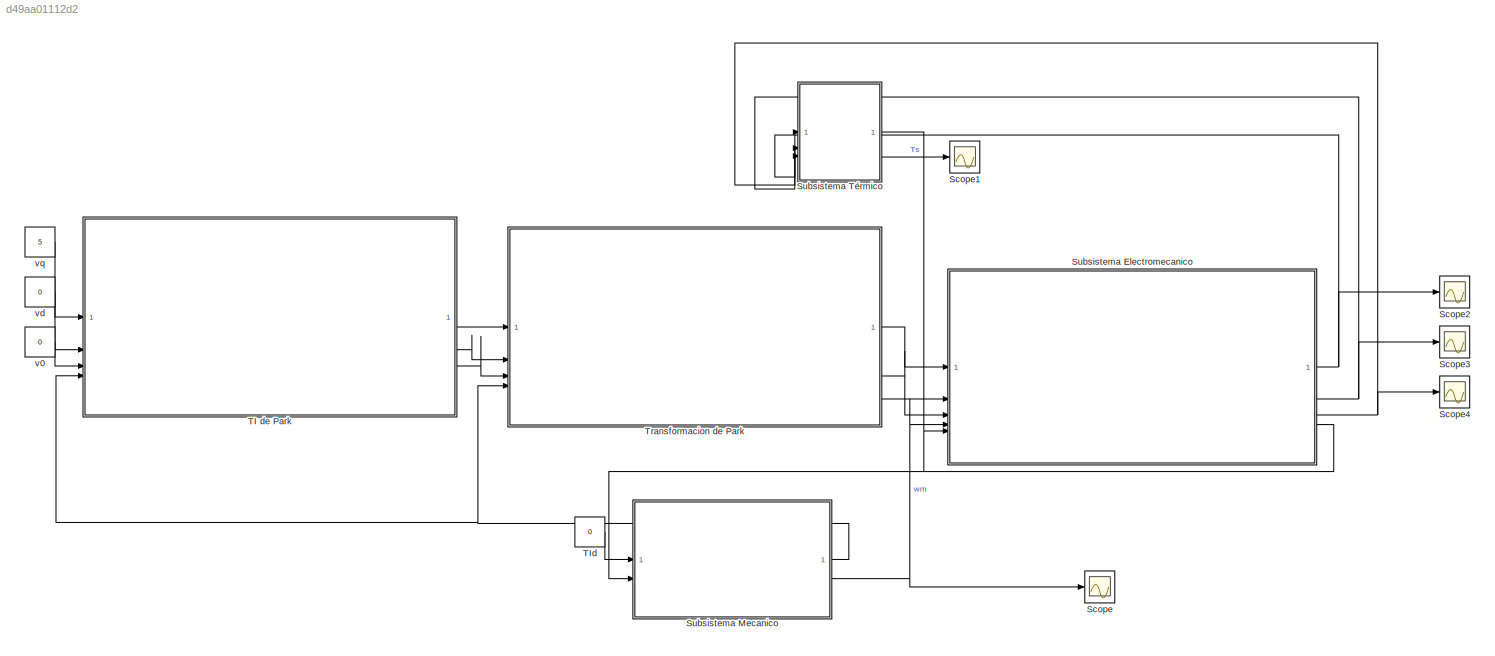
MODEL slx_d49aa01112d2
KIND model
CONFIG AbsTol = auto
CONFIG EnableMultiTasking = off
CONFIG FixedStep = auto
CONFIG MaxStep = auto
CONFIG MinStep = auto
CONFIG PostLoadFcn = parametros_sistema_completo\nrun("parametros_sistema_completo.mlx")
CONFIG RelTol = 1e-3
CONFIG SampleTimeConstraint = Unconstrained
CONFIG SolverName = VariableStepAuto
CONFIG StartTime = 0.0
CONFIG StopTime = 10.0
BLOCK [Scope] Scope
  Floating = off
  NumInputPorts = 1
  ScopeSpecificationString = Simulink.scopes.TimeScopeBlockCfg('CurrentConfiguration', extmgr.ConfigurationSet(extmgr.Configuration('Core','General UI',true,'FigureColor',[1 1 1]),extmgr.Configuration('Core','Source UI',true),extmgr.Configuration('Sources','WiredSimulink',true),extmgr.Configuration('Visuals','Time Domain',true,'SerializedDisplays',{struct('MinYLimReal','-12.7259','MaxYLimReal','114.5331','YLabelReal','','MinY...<+1602ch>
BLOCK [Scope] Scope1
  Floating = off
  NumInputPorts = 1
  ScopeSpecificationString = Simulink.scopes.TimeScopeBlockCfg('CurrentConfiguration', extmgr.ConfigurationSet(extmgr.Configuration('Core','General UI',true,'FigureColor',[1 1 1]),extmgr.Configuration('Core','Source UI',true),extmgr.Configuration('Sources','WiredSimulink',true,'DataLoggingVariableName','ScopeData1'),extmgr.Configuration('Visuals','Time Domain',true,'SerializedDisplays',{struct('MinYLimReal','19.96696','MaxYLi...<+1556ch>
BLOCK [Scope] Scope2
  Floating = off
  NumInputPorts = 1
  ScopeSpecificationString = Simulink.scopes.TimeScopeBlockCfg('CurrentConfiguration', extmgr.ConfigurationSet(extmgr.Configuration('Core','General UI',true,'FigureColor',[1 1 1]),extmgr.Configuration('Core','Source UI',true),extmgr.Configuration('Sources','WiredSimulink',true,'DataLoggingVariableName','ScopeData2'),extmgr.Configuration('Visuals','Time Domain',true,'SerializedDisplays',{struct('MinYLimReal','-0.36688','MaxYLi...<+1536ch>
BLOCK [Scope] Scope3
  Floating = off
  NumInputPorts = 1
  ScopeSpecificationString = Simulink.scopes.TimeScopeBlockCfg('CurrentConfiguration', extmgr.ConfigurationSet(extmgr.Configuration('Core','General UI',true),extmgr.Configuration('Core','Source UI',true),extmgr.Configuration('Sources','WiredSimulink',true,'DataLoggingVariableName','ScopeData3'),extmgr.Configuration('Visuals','Time Domain',true,'SerializedDisplays',{struct('MinYLimReal','-0.21509','MaxYLimReal','1.75287','YLab...<+1421ch>
BLOCK [Scope] Scope4
  Floating = off
  NumInputPorts = 1
  ScopeSpecificationString = Simulink.scopes.TimeScopeBlockCfg('CurrentConfiguration', extmgr.ConfigurationSet(extmgr.Configuration('Core','General UI',true),extmgr.Configuration('Core','Source UI',true),extmgr.Configuration('Sources','WiredSimulink',true,'DataLoggingVariableName','ScopeData4'),extmgr.Configuration('Visuals','Time Domain',true,'SerializedDisplays',{struct('MinYLimReal','-0.000000000048','MaxYLimReal','0.00000...<+1473ch>
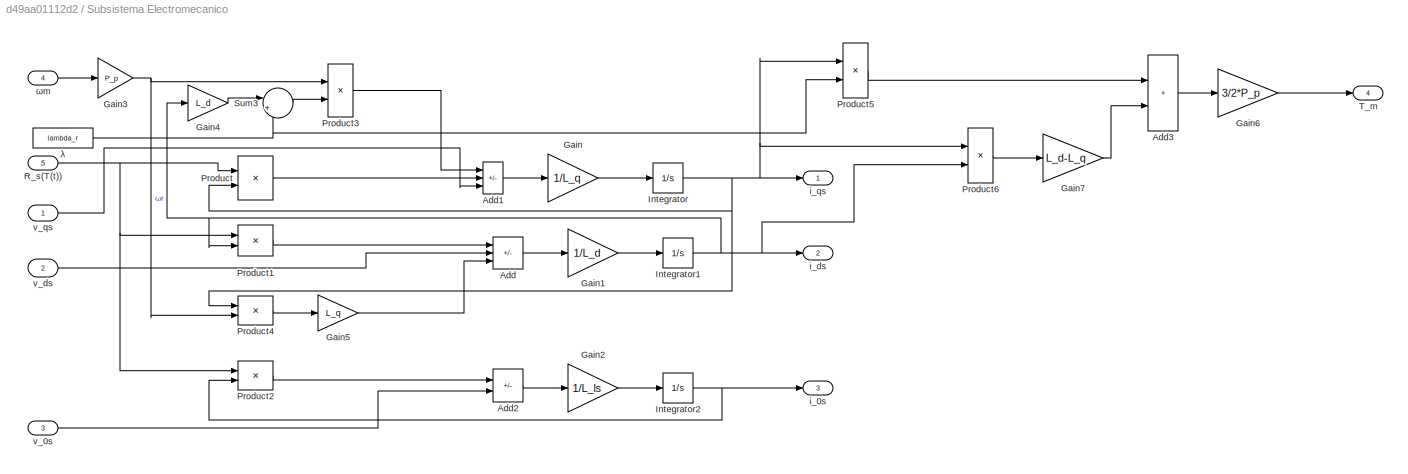
BLOCK [SubSystem] Subsistema Electromecanico
BLOCK [Sum] Subsistema Electromecanico/Add
  IconShape = rectangular
  Inputs = -++
BLOCK [Sum] Subsistema Electromecanico/Add1
  IconShape = rectangular
  Inputs = --+
BLOCK [Sum] Subsistema Electromecanico/Add2
  IconShape = rectangular
  Inputs = -+
BLOCK [Sum] Subsistema Electromecanico/Add3
  IconShape = rectangular
BLOCK [Gain] Subsistema Electromecanico/Gain
  Gain = 1/L_q
BLOCK [Gain] Subsistema Electromecanico/Gain1
  Gain = 1/L_d
BLOCK [Gain] Subsistema Electromecanico/Gain2
  Gain = 1/L_ls
BLOCK [Gain] Subsistema Electromecanico/Gain3
  Gain = P_p
BLOCK [Gain] Subsistema Electromecanico/Gain4
  Gain = L_d
BLOCK [Gain] Subsistema Electromecanico/Gain5
  Gain = L_q
BLOCK [Gain] Subsistema Electromecanico/Gain6
  Gain = 3/2*P_p
BLOCK [Gain] Subsistema Electromecanico/Gain7
  Gain = L_d-L_q
BLOCK [Integrator] Subsistema Electromecanico/Integrator
BLOCK [Integrator] Subsistema Electromecanico/Integrator1
BLOCK [Integrator] Subsistema Electromecanico/Integrator2
BLOCK [Product] Subsistema Electromecanico/Product
BLOCK [Product] Subsistema Electromecanico/Product1
BLOCK [Product] Subsistema Electromecanico/Product2
BLOCK [Product] Subsistema Electromecanico/Product3
BLOCK [Product] Subsistema Electromecanico/Product4
BLOCK [Product] Subsistema Electromecanico/Product5
BLOCK [Product] Subsistema Electromecanico/Product6
BLOCK [Inport] Subsistema Electromecanico/R_s(T(t))
  Port = 5
BLOCK [Sum] Subsistema Electromecanico/Sum3
  Inputs = |++
BLOCK [Outport] Subsistema Electromecanico/T_m
  Port = 4
BLOCK [Outport] Subsistema Electromecanico/i_0s
  Port = 3
BLOCK [Outport] Subsistema Electromecanico/i_ds
  Port = 2
BLOCK [Outport] Subsistema Electromecanico/i_qs
BLOCK [Inport] Subsistema Electromecanico/v_0s
  Port = 3
BLOCK [Inport] Subsistema Electromecanico/v_ds
  Port = 2
BLOCK [Inport] Subsistema Electromecanico/v_qs
BLOCK [Constant] Subsistema Electromecanico/λ
  NameLocation = left
  Value = lambda_r
BLOCK [Inport] Subsistema Electromecanico/ωm
  Port = 4
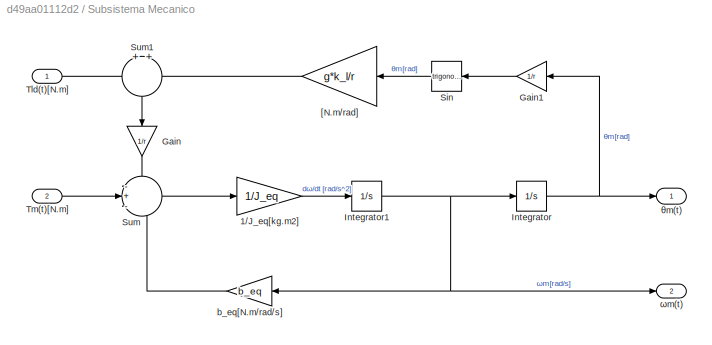
BLOCK [SubSystem] Subsistema Mecanico
BLOCK [Gain] Subsistema Mecanico/1//J_eq[kg.m2]
  Gain = 1/J_eq
BLOCK [Gain] Subsistema Mecanico/Gain
  Gain = 1/r
  NameLocation = left
BLOCK [Gain] Subsistema Mecanico/Gain1
  Gain = 1/r
  NameLocation = top
BLOCK [Integrator] Subsistema Mecanico/Integrator
BLOCK [Integrator] Subsistema Mecanico/Integrator1
BLOCK [Trigonometry] Subsistema Mecanico/Sin
  NameLocation = top
BLOCK [Sum] Subsistema Mecanico/Sum
  Inputs = -+-
BLOCK [Sum] Subsistema Mecanico/Sum1
  NameLocation = left
BLOCK [Inport] Subsistema Mecanico/Tld(t)[N.m]
BLOCK [Inport] Subsistema Mecanico/Tm(t)[N.m]
  Port = 2
BLOCK [Gain] Subsistema Mecanico/[N.m//rad]
  Gain = g*k_l/r
  NameLocation = top
BLOCK [Gain] Subsistema Mecanico/b_eq[N.m//rad//s]
  Gain = b_eq
  NameLocation = top
BLOCK [Outport] Subsistema Mecanico/θm(t)
  NameLocation = top
BLOCK [Outport] Subsistema Mecanico/ωm(t)
  Port = 2
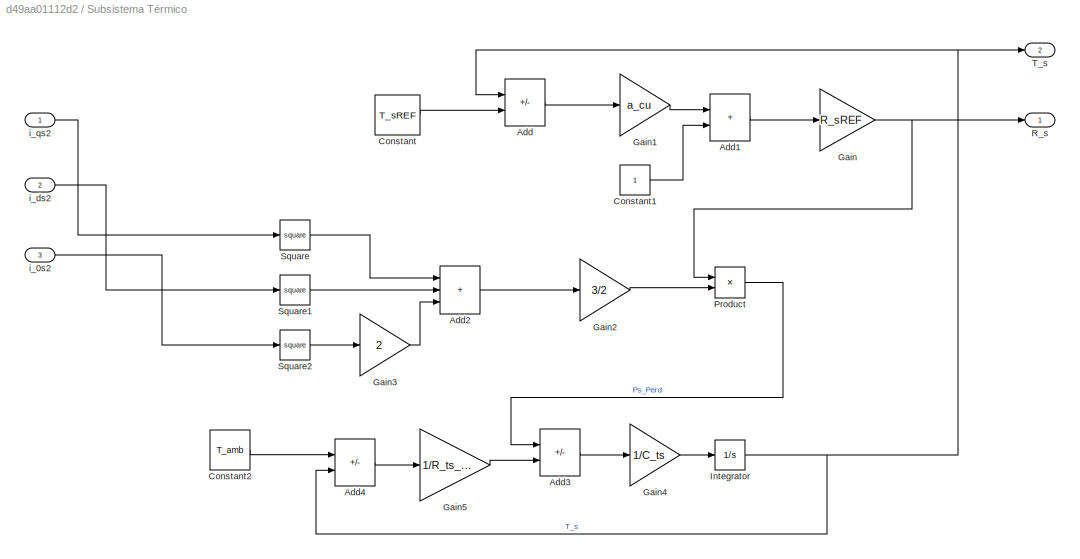
BLOCK [SubSystem] Subsistema Térmico
BLOCK [Sum] Subsistema Térmico/Add
  IconShape = rectangular
  Inputs = +-
BLOCK [Sum] Subsistema Térmico/Add1
  IconShape = rectangular
BLOCK [Sum] Subsistema Térmico/Add2
  IconShape = rectangular
  Inputs = +++
BLOCK [Sum] Subsistema Térmico/Add3
  IconShape = rectangular
  Inputs = +-
BLOCK [Sum] Subsistema Térmico/Add4
  IconShape = rectangular
  Inputs = -+
BLOCK [Constant] Subsistema Térmico/Constant
  Value = T_sREF
BLOCK [Constant] Subsistema Térmico/Constant1
BLOCK [Constant] Subsistema Térmico/Constant2
  Value = T_amb
BLOCK [Gain] Subsistema Térmico/Gain
  Gain = R_sREF
BLOCK [Gain] Subsistema Térmico/Gain1
  Gain = a_cu
BLOCK [Gain] Subsistema Térmico/Gain2
  Gain = 3/2
BLOCK [Gain] Subsistema Térmico/Gain3
  Gain = 2
BLOCK [Gain] Subsistema Térmico/Gain4
  Gain = 1/C_ts
BLOCK [Gain] Subsistema Térmico/Gain5
  Gain = 1/R_ts_amb
BLOCK [Integrator] Subsistema Térmico/Integrator
  InitialCondition = 20
BLOCK [Product] Subsistema Térmico/Product
BLOCK [Outport] Subsistema Térmico/R_s
BLOCK [Math] Subsistema Térmico/Square
  Operator = square
  OutDataTypeStr = double
BLOCK [Math] Subsistema Térmico/Square1
  Operator = square
BLOCK [Math] Subsistema Térmico/Square2
  Operator = square
BLOCK [Outport] Subsistema Térmico/T_s
  Port = 2
BLOCK [Inport] Subsistema Térmico/i_0s2
  Port = 3
BLOCK [Inport] Subsistema Térmico/i_ds2
  Port = 2
BLOCK [Inport] Subsistema Térmico/i_qs2
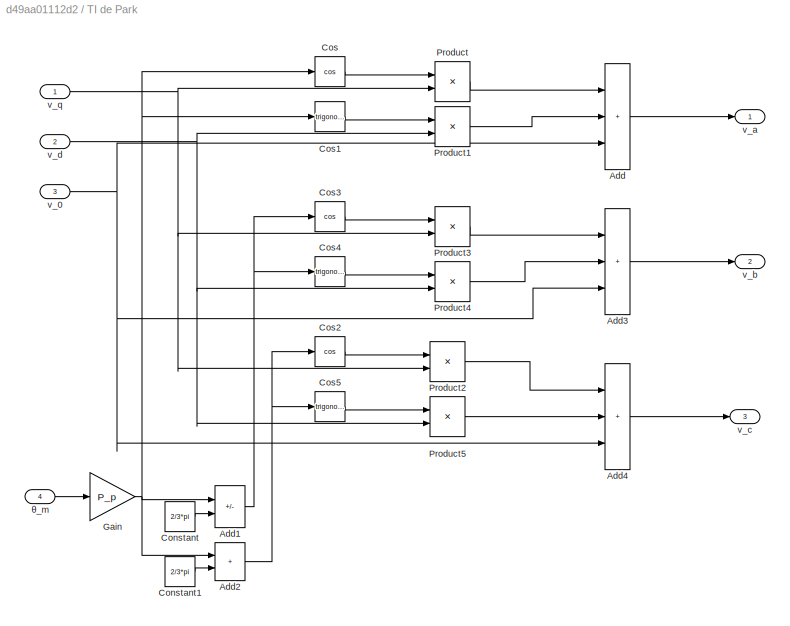
BLOCK [SubSystem] TI de Park
BLOCK [Sum] TI de Park/Add
  IconShape = rectangular
  Inputs = +++
BLOCK [Sum] TI de Park/Add1
  IconShape = rectangular
  Inputs = +-
BLOCK [Sum] TI de Park/Add2
  IconShape = rectangular
BLOCK [Sum] TI de Park/Add3
  IconShape = rectangular
  Inputs = +++
BLOCK [Sum] TI de Park/Add4
  IconShape = rectangular
  Inputs = +++
BLOCK [Constant] TI de Park/Constant
  Value = 2/3*pi
BLOCK [Constant] TI de Park/Constant1
  Value = 2/3*pi
BLOCK [Trigonometry] TI de Park/Cos
  Operator = cos
BLOCK [Trigonometry] TI de Park/Cos1
BLOCK [Trigonometry] TI de Park/Cos2
  Operator = cos
BLOCK [Trigonometry] TI de Park/Cos3
  Operator = cos
BLOCK [Trigonometry] TI de Park/Cos4
BLOCK [Trigonometry] TI de Park/Cos5
BLOCK [Gain] TI de Park/Gain
  Gain = P_p
BLOCK [Product] TI de Park/Product
BLOCK [Product] TI de Park/Product1
BLOCK [Product] TI de Park/Product2
BLOCK [Product] TI de Park/Product3
BLOCK [Product] TI de Park/Product4
BLOCK [Product] TI de Park/Product5
BLOCK [Inport] TI de Park/v_0
  Port = 3
BLOCK [Outport] TI de Park/v_a
BLOCK [Outport] TI de Park/v_b
  Port = 2
BLOCK [Outport] TI de Park/v_c
  Port = 3
BLOCK [Inport] TI de Park/v_d
  Port = 2
BLOCK [Inport] TI de Park/v_q
BLOCK [Inport] TI de Park/θ_m
  Port = 4
BLOCK [Constant] TId
  Value = 0
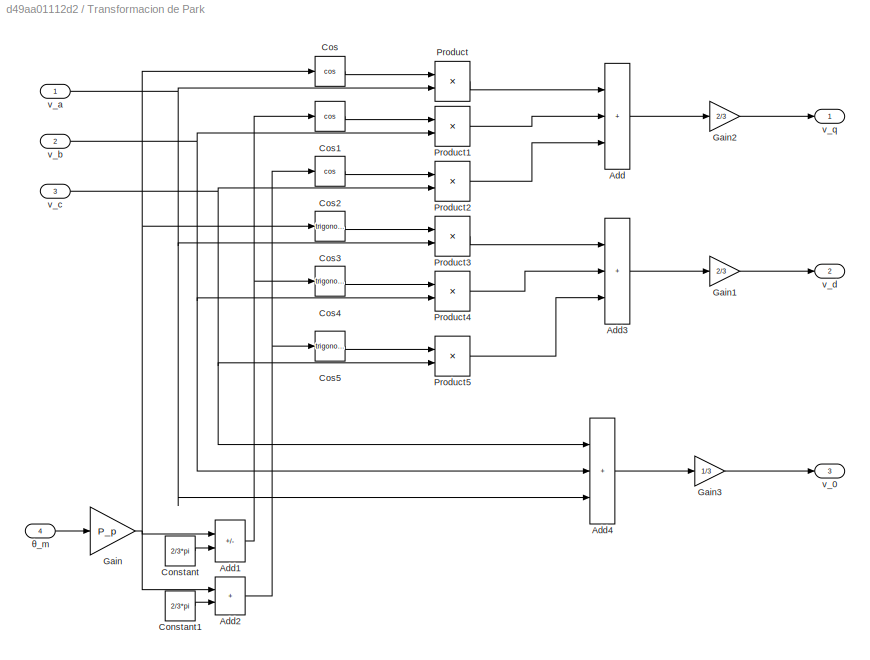
BLOCK [SubSystem] Transformacion de Park
BLOCK [Sum] Transformacion de Park/Add
  IconShape = rectangular
  Inputs = +++
BLOCK [Sum] Transformacion de Park/Add1
  IconShape = rectangular
  Inputs = +-
BLOCK [Sum] Transformacion de Park/Add2
  IconShape = rectangular
BLOCK [Sum] Transformacion de Park/Add3
  IconShape = rectangular
  Inputs = +++
BLOCK [Sum] Transformacion de Park/Add4
  IconShape = rectangular
  Inputs = +++
BLOCK [Constant] Transformacion de Park/Constant
  Value = 2/3*pi
BLOCK [Constant] Transformacion de Park/Constant1
  Value = 2/3*pi
BLOCK [Trigonometry] Transformacion de Park/Cos
  Operator = cos
BLOCK [Trigonometry] Transformacion de Park/Cos1
  Operator = cos
BLOCK [Trigonometry] Transformacion de Park/Cos2
  Operator = cos
BLOCK [Trigonometry] Transformacion de Park/Cos3
BLOCK [Trigonometry] Transformacion de Park/Cos4
BLOCK [Trigonometry] Transformacion de Park/Cos5
BLOCK [Gain] Transformacion de Park/Gain
  Gain = P_p
BLOCK [Gain] Transformacion de Park/Gain1
  Gain = 2/3
BLOCK [Gain] Transformacion de Park/Gain2
  Gain = 2/3
BLOCK [Gain] Transformacion de Park/Gain3
  Gain = 1/3
BLOCK [Product] Transformacion de Park/Product
BLOCK [Product] Transformacion de Park/Product1
BLOCK [Product] Transformacion de Park/Product2
BLOCK [Product] Transformacion de Park/Product3
BLOCK [Product] Transformacion de Park/Product4
BLOCK [Product] Transformacion de Park/Product5
BLOCK [Outport] Transformacion de Park/v_0
  Port = 3
BLOCK [Inport] Transformacion de Park/v_a
BLOCK [Inport] Transformacion de Park/v_b
  Port = 2
BLOCK [Inport] Transformacion de Park/v_c
  Port = 3
BLOCK [Outport] Transformacion de Park/v_d
  Port = 2
BLOCK [Outport] Transformacion de Park/v_q
BLOCK [Inport] Transformacion de Park/θ_m
  Port = 4
BLOCK [Constant] v0
  Value = 0
BLOCK [Constant] vd
  Value = 0
BLOCK [Constant] vq
  Value = 5
LINE Subsistema Electromecanico/Add1:1 -> Subsistema Electromecanico/Gain:1
LINE Subsistema Electromecanico/Add2:1 -> Subsistema Electromecanico/Gain2:1
LINE Subsistema Electromecanico/Add3:1 -> Subsistema Electromecanico/Gain6:1
LINE Subsistema Electromecanico/Add:1 -> Subsistema Electromecanico/Gain1:1
LINE Subsistema Electromecanico/Gain1:1 -> Subsistema Electromecanico/Integrator1:1
LINE Subsistema Electromecanico/Gain2:1 -> Subsistema Electromecanico/Integrator2:1
NET Subsistema Electromecanico/Gain3:1 -> Subsistema Electromecanico/Product3:1, Subsistema Electromecanico/Product4:2
LINE Subsistema Electromecanico/Gain4:1 -> Subsistema Electromecanico/Sum3:1
LINE Subsistema Electromecanico/Gain5:1 -> Subsistema Electromecanico/Add:3
LINE Subsistema Electromecanico/Gain6:1 -> Subsistema Electromecanico/T_m:1
LINE Subsistema Electromecanico/Gain7:1 -> Subsistema Electromecanico/Add3:2
LINE Subsistema Electromecanico/Gain:1 -> Subsistema Electromecanico/Integrator:1
NET Subsistema Electromecanico/Integrator1:1 -> Subsistema Electromecanico/Gain4:1, Subsistema Electromecanico/Product1:2, Subsistema Electromecanico/Product6:2, Subsistema Electromecanico/i_ds:1
NET Subsistema Electromecanico/Integrator2:1 -> Subsistema Electromecanico/Product2:2, Subsistema Electromecanico/i_0s:1
NET Subsistema Electromecanico/Integrator:1 -> Subsistema Electromecanico/Product4:1, Subsistema Electromecanico/Product5:1, Subsistema Electromecanico/Product6:1, Subsistema Electromecanico/Product:2, Subsistema Electromecanico/i_qs:1
LINE Subsistema Electromecanico/Product1:1 -> Subsistema Electromecanico/Add:1
LINE Subsistema Electromecanico/Product2:1 -> Subsistema Electromecanico/Add2:1
LINE Subsistema Electromecanico/Product3:1 -> Subsistema Electromecanico/Add1:1
LINE Subsistema Electromecanico/Product4:1 -> Subsistema Electromecanico/Gain5:1
LINE Subsistema Electromecanico/Product5:1 -> Subsistema Electromecanico/Add3:1
LINE Subsistema Electromecanico/Product6:1 -> Subsistema Electromecanico/Gain7:1
LINE Subsistema Electromecanico/Product:1 -> Subsistema Electromecanico/Add1:2
NET Subsistema Electromecanico/R_s(T(t)):1 -> Subsistema Electromecanico/Product1:1, Subsistema Electromecanico/Product2:1, Subsistema Electromecanico/Product:1
LINE Subsistema Electromecanico/Sum3:1 -> Subsistema Electromecanico/Product3:2
LINE Subsistema Electromecanico/v_0s:1 -> Subsistema Electromecanico/Add2:2
LINE Subsistema Electromecanico/v_ds:1 -> Subsistema Electromecanico/Add:2
LINE Subsistema Electromecanico/v_qs:1 -> Subsistema Electromecanico/Add1:3
NET Subsistema Electromecanico/λ:1 -> Subsistema Electromecanico/Product5:2, Subsistema Electromecanico/Sum3:2
LINE Subsistema Electromecanico/ωm:1 -> Subsistema Electromecanico/Gain3:1
NET Subsistema Electromecanico:1 -> Scope2:1, Subsistema Térmico:1
NET Subsistema Electromecanico:2 -> Scope3:1, Subsistema Térmico:2
NET Subsistema Electromecanico:3 -> Scope4:1, Subsistema Térmico:3
LINE Subsistema Electromecanico:4 -> Subsistema Mecanico:2
LINE Subsistema Mecanico/1//J_eq[kg.m2]:1 -> Subsistema Mecanico/Integrator1:1
LINE Subsistema Mecanico/Gain1:1 -> Subsistema Mecanico/Sin:1
LINE Subsistema Mecanico/Gain:1 -> Subsistema Mecanico/Sum:1
NET Subsistema Mecanico/Integrator1:1 -> Subsistema Mecanico/Integrator:1, Subsistema Mecanico/b_eq[N.m//rad//s]:1, Subsistema Mecanico/ωm(t):1
NET Subsistema Mecanico/Integrator:1 -> Subsistema Mecanico/Gain1:1, Subsistema Mecanico/θm(t):1
LINE Subsistema Mecanico/Sin:1 -> Subsistema Mecanico/[N.m//rad]:1
LINE Subsistema Mecanico/Sum1:1 -> Subsistema Mecanico/Gain:1
LINE Subsistema Mecanico/Sum:1 -> Subsistema Mecanico/1//J_eq[kg.m2]:1
LINE Subsistema Mecanico/Tld(t)[N.m]:1 -> Subsistema Mecanico/Sum1:1
LINE Subsistema Mecanico/Tm(t)[N.m]:1 -> Subsistema Mecanico/Sum:2
LINE Subsistema Mecanico/[N.m//rad]:1 -> Subsistema Mecanico/Sum1:2
LINE Subsistema Mecanico/b_eq[N.m//rad//s]:1 -> Subsistema Mecanico/Sum:3
NET Subsistema Mecanico:1 -> TI de Park:4, Transformacion de Park:4
NET Subsistema Mecanico:2 -> Scope:1, Subsistema Electromecanico:4
LINE Subsistema Térmico/Add1:1 -> Subsistema Térmico/Gain:1
LINE Subsistema Térmico/Add2:1 -> Subsistema Térmico/Gain2:1
LINE Subsistema Térmico/Add3:1 -> Subsistema Térmico/Gain4:1
LINE Subsistema Térmico/Add4:1 -> Subsistema Térmico/Gain5:1
LINE Subsistema Térmico/Add:1 -> Subsistema Térmico/Gain1:1
LINE Subsistema Térmico/Constant1:1 -> Subsistema Térmico/Add1:2
LINE Subsistema Térmico/Constant2:1 -> Subsistema Térmico/Add4:1
LINE Subsistema Térmico/Constant:1 -> Subsistema Térmico/Add:2
LINE Subsistema Térmico/Gain1:1 -> Subsistema Térmico/Add1:1
LINE Subsistema Térmico/Gain2:1 -> Subsistema Térmico/Product:2
LINE Subsistema Térmico/Gain3:1 -> Subsistema Térmico/Add2:3
LINE Subsistema Térmico/Gain4:1 -> Subsistema Térmico/Integrator:1
LINE Subsistema Térmico/Gain5:1 -> Subsistema Térmico/Add3:2
NET Subsistema Térmico/Gain:1 -> Subsistema Térmico/Product:1, Subsistema Térmico/R_s:1
NET Subsistema Térmico/Integrator:1 -> Subsistema Térmico/Add4:2, Subsistema Térmico/Add:1, Subsistema Térmico/T_s:1
LINE Subsistema Térmico/Product:1 -> Subsistema Térmico/Add3:1
LINE Subsistema Térmico/Square1:1 -> Subsistema Térmico/Add2:2
LINE Subsistema Térmico/Square2:1 -> Subsistema Térmico/Gain3:1
LINE Subsistema Térmico/Square:1 -> Subsistema Térmico/Add2:1
LINE Subsistema Térmico/i_0s2:1 -> Subsistema Térmico/Square2:1
LINE Subsistema Térmico/i_ds2:1 -> Subsistema Térmico/Square1:1
LINE Subsistema Térmico/i_qs2:1 -> Subsistema Térmico/Square:1
LINE Subsistema Térmico:1 -> Subsistema Electromecanico:5
LINE Subsistema Térmico:2 -> Scope1:1
NET TI de Park/Add1:1 -> TI de Park/Cos3:1, TI de Park/Cos4:1
NET TI de Park/Add2:1 -> TI de Park/Cos2:1, TI de Park/Cos5:1
LINE TI de Park/Add3:1 -> TI de Park/v_b:1
LINE TI de Park/Add4:1 -> TI de Park/v_c:1
LINE TI de Park/Add:1 -> TI de Park/v_a:1
LINE TI de Park/Constant1:1 -> TI de Park/Add2:2
LINE TI de Park/Constant:1 -> TI de Park/Add1:2
LINE TI de Park/Cos1:1 -> TI de Park/Product1:1
LINE TI de Park/Cos2:1 -> TI de Park/Product2:1
LINE TI de Park/Cos3:1 -> TI de Park/Product3:1
LINE TI de Park/Cos4:1 -> TI de Park/Product4:1
LINE TI de Park/Cos5:1 -> TI de Park/Product5:1
LINE TI de Park/Cos:1 -> TI de Park/Product:1
NET TI de Park/Gain:1 -> TI de Park/Add1:1, TI de Park/Add2:1, TI de Park/Cos1:1, TI de Park/Cos:1
LINE TI de Park/Product1:1 -> TI de Park/Add:2
LINE TI de Park/Product2:1 -> TI de Park/Add4:1
LINE TI de Park/Product3:1 -> TI de Park/Add3:1
LINE TI de Park/Product4:1 -> TI de Park/Add3:2
LINE TI de Park/Product5:1 -> TI de Park/Add4:2
LINE TI de Park/Product:1 -> TI de Park/Add:1
NET TI de Park/v_0:1 -> TI de Park/Add3:3, TI de Park/Add4:3, TI de Park/Add:3
NET TI de Park/v_d:1 -> TI de Park/Product1:2, TI de Park/Product4:2, TI de Park/Product5:2
NET TI de Park/v_q:1 -> TI de Park/Product2:2, TI de Park/Product3:2, TI de Park/Product:2
LINE TI de Park/θ_m:1 -> TI de Park/Gain:1
LINE TI de Park:1 -> Transformacion de Park:1
LINE TI de Park:2 -> Transformacion de Park:2
LINE TI de Park:3 -> Transformacion de Park:3
LINE TId:1 -> Subsistema Mecanico:1
NET Transformacion de Park/Add1:1 -> Transformacion de Park/Cos1:1, Transformacion de Park/Cos4:1
NET Transformacion de Park/Add2:1 -> Transformacion de Park/Cos2:1, Transformacion de Park/Cos5:1
LINE Transformacion de Park/Add3:1 -> Transformacion de Park/Gain1:1
LINE Transformacion de Park/Add4:1 -> Transformacion de Park/Gain3:1
LINE Transformacion de Park/Add:1 -> Transformacion de Park/Gain2:1
LINE Transformacion de Park/Constant1:1 -> Transformacion de Park/Add2:2
LINE Transformacion de Park/Constant:1 -> Transformacion de Park/Add1:2
LINE Transformacion de Park/Cos1:1 -> Transformacion de Park/Product1:1
LINE Transformacion de Park/Cos2:1 -> Transformacion de Park/Product2:1
LINE Transformacion de Park/Cos3:1 -> Transformacion de Park/Product3:1
LINE Transformacion de Park/Cos4:1 -> Transformacion de Park/Product4:1
LINE Transformacion de Park/Cos5:1 -> Transformacion de Park/Product5:1
LINE Transformacion de Park/Cos:1 -> Transformacion de Park/Product:1
LINE Transformacion de Park/Gain1:1 -> Transformacion de Park/v_d:1
LINE Transformacion de Park/Gain2:1 -> Transformacion de Park/v_q:1
LINE Transformacion de Park/Gain3:1 -> Transformacion de Park/v_0:1
NET Transformacion de Park/Gain:1 -> Transformacion de Park/Add1:1, Transformacion de Park/Add2:1, Transformacion de Park/Cos3:1, Transformacion de Park/Cos:1
LINE Transformacion de Park/Product1:1 -> Transformacion de Park/Add:2
LINE Transformacion de Park/Product2:1 -> Transformacion de Park/Add:3
LINE Transformacion de Park/Product3:1 -> Transformacion de Park/Add3:1
LINE Transformacion de Park/Product4:1 -> Transformacion de Park/Add3:2
LINE Transformacion de Park/Product5:1 -> Transformacion de Park/Add3:3
LINE Transformacion de Park/Product:1 -> Transformacion de Park/Add:1
NET Transformacion de Park/v_a:1 -> Transformacion de Park/Add4:3, Transformacion de Park/Product3:2, Transformacion de Park/Product:2
NET Transformacion de Park/v_b:1 -> Transformacion de Park/Add4:2, Transformacion de Park/Product1:2, Transformacion de Park/Product4:2
NET Transformacion de Park/v_c:1 -> Transformacion de Park/Add4:1, Transformacion de Park/Product2:2, Transformacion de Park/Product5:2
LINE Transformacion de Park/θ_m:1 -> Transformacion de Park/Gain:1
LINE Transformacion de Park:1 -> Subsistema Electromecanico:1
LINE Transformacion de Park:2 -> Subsistema Electromecanico:2
LINE Transformacion de Park:3 -> Subsistema Electromecanico:3
LINE v0:1 -> TI de Park:3
LINE vd:1 -> TI de Park:2
LINE vq:1 -> TI de Park:1
note: NET lines group one-source signal fan-out (src -> all destinations, sorted); 1:1 wires keep LINE
